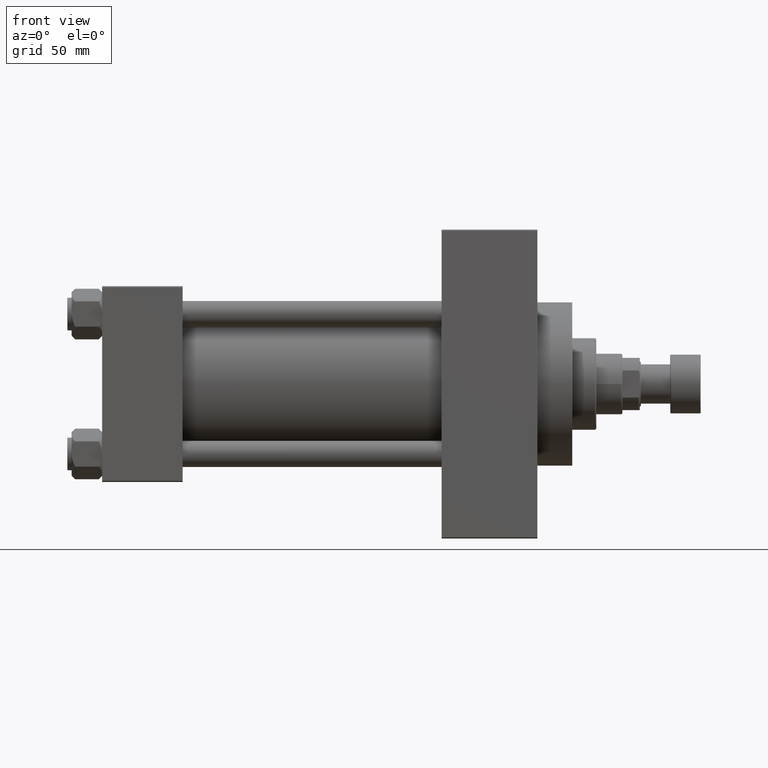
[diagram: clean part render]
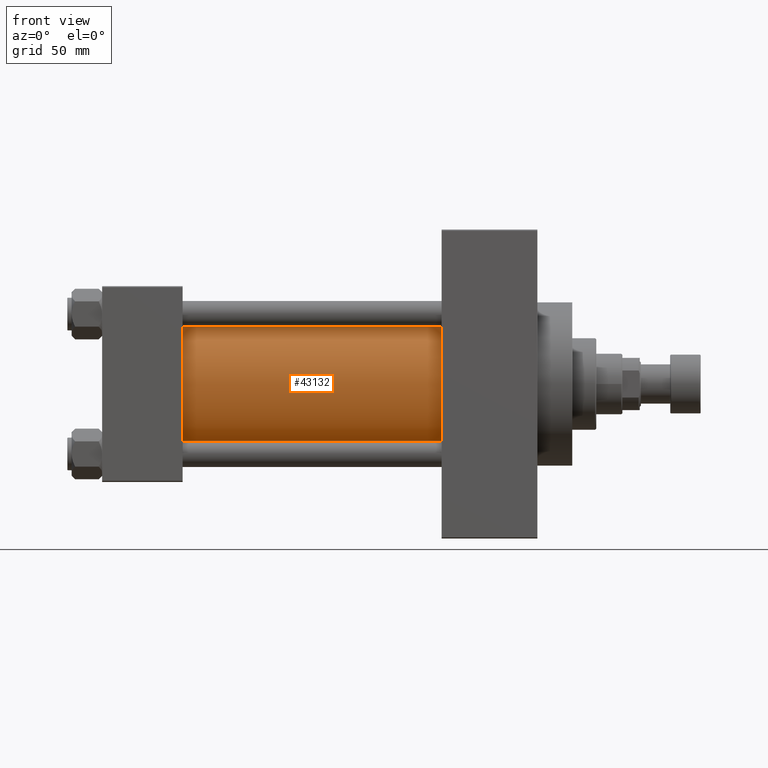
[diagram: same view with one face highlighted and labeled with its STEP entity id]
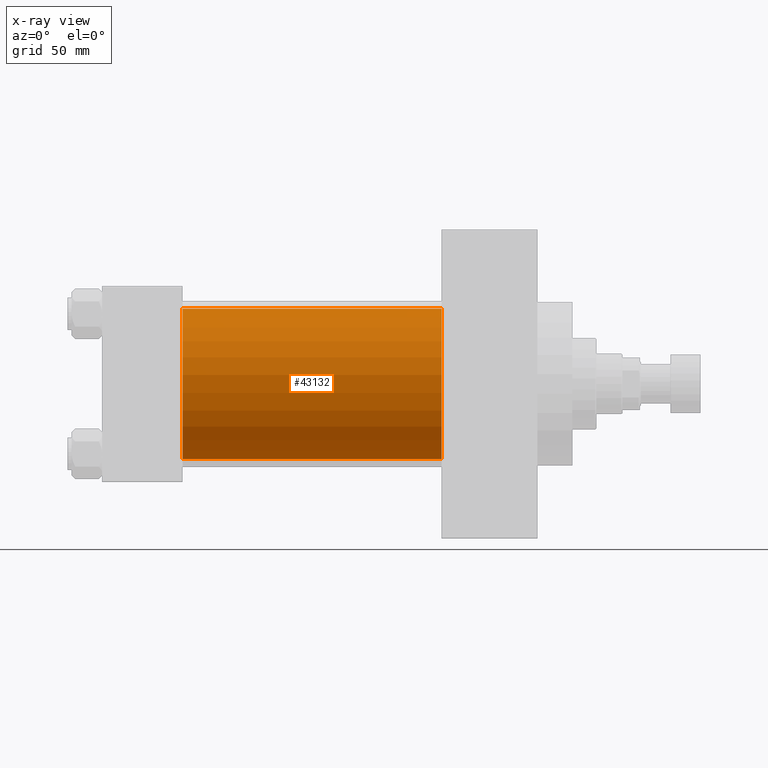
[diagram: x-ray of the same camera — body ghosted, the highlighted face saturated]
A machine part, front view. The second image highlights one B-rep face of the part: STEP entity #43132.
The next image is the same camera in x-ray: the body ghosted, the highlighted face saturated — about 1% of this face is hidden behind the body in this view.
In plain terms, the highlighted cylindrical surface (partial cylindrical patch) has radius 34.5 mm, axis along (-1, -0, -0).
Its self-contained STEP definition (entity closure, byte-faithful):
#1459 = DIRECTION ( 'NONE',  ( -1.000000000000000000, -0.000000000000000000, -0.000000000000000000 ) ) ;
#1900 = DIRECTION ( 'NONE',  ( 1.000000000000000000, -0.000000000000000000, 0.000000000000000000 ) ) ;
#3140 = EDGE_LOOP ( 'NONE', ( #34249, #21052, #8076, #26421 ) ) ;
#3490 = DIRECTION ( 'NONE',  ( -1.000000000000000000, -0.000000000000000000, -0.000000000000000000 ) ) ;
#3753 = CARTESIAN_POINT ( 'NONE',  ( 156.0000000000000000, -2.602085213965210642E-15, 0.000000000000000000 ) ) ;
#5546 = DIRECTION ( 'NONE',  ( 0.000000000000000000, 0.000000000000000000, 1.000000000000000000 ) ) ;
#8076 = ORIENTED_EDGE ( 'NONE', *, *, #27461, .T. ) ;
#9674 = AXIS2_PLACEMENT_3D ( 'NONE', #3753, #14819, #44242 ) ;
#12528 = CARTESIAN_POINT ( 'NONE',  ( 156.0000000000000000, -2.602085213965210642E-15, 0.000000000000000000 ) ) ;
#13248 = CARTESIAN_POINT ( 'NONE',  ( 37.00000000000000711, 1.622946243093158675E-15, -34.50000000000000000 ) ) ;
#14819 = DIRECTION ( 'NONE',  ( 1.000000000000000000, 0.000000000000000000, 0.000000000000000000 ) ) ;
#16377 = AXIS2_PLACEMENT_3D ( 'NONE', #12528, #1459, #5546 ) ;
#19967 = DIRECTION ( 'NONE',  ( 0.000000000000000000, 0.000000000000000000, 1.000000000000000000 ) ) ;
#20212 = EDGE_CURVE ( 'NONE', #42566, #30236, #30444, .T. ) ;
#21052 = ORIENTED_EDGE ( 'NONE', *, *, #20212, .F. ) ;
#21298 = VERTEX_POINT ( 'NONE', #21341 ) ;
#21331 = CARTESIAN_POINT ( 'NONE',  ( 156.0000000000000000, -2.602085213965210642E-15, 34.50000000000000000 ) ) ;
#21341 = CARTESIAN_POINT ( 'NONE',  ( 37.00000000000000711, -2.602085213965210642E-15, 34.50000000000000000 ) ) ;
#21798 = CARTESIAN_POINT ( 'NONE',  ( 156.0000000000000000, 1.622946243093158675E-15, -34.50000000000000000 ) ) ;
#22406 = DIRECTION ( 'NONE',  ( -1.000000000000000000, -0.000000000000000000, -0.000000000000000000 ) ) ;
#23427 = VECTOR ( 'NONE', #3490, 1000.000000000000000 ) ;
#23850 = FACE_OUTER_BOUND ( 'NONE', #3140, .T. ) ;
#24547 = CARTESIAN_POINT ( 'NONE',  ( 156.0000000000000000, 1.622946243093158675E-15, -34.50000000000000000 ) ) ;
#25560 = CARTESIAN_POINT ( 'NONE',  ( 156.0000000000000000, -2.602085213965210642E-15, 34.50000000000000000 ) ) ;
#26253 = LINE ( 'NONE', #25560, #29913 ) ;
#26421 = ORIENTED_EDGE ( 'NONE', *, *, #44842, .T. ) ;
#27461 = EDGE_CURVE ( 'NONE', #42566, #21298, #26253, .T. ) ;
#29913 = VECTOR ( 'NONE', #22406, 1000.000000000000000 ) ;
#30236 = VERTEX_POINT ( 'NONE', #24547 ) ;
#30444 = CIRCLE ( 'NONE', #9674, 34.50000000000000000 ) ;
#32587 = CIRCLE ( 'NONE', #44152, 34.50000000000000000 ) ;
#34249 = ORIENTED_EDGE ( 'NONE', *, *, #47217, .F. ) ;
#40126 = LINE ( 'NONE', #21798, #23427 ) ;
#41976 = VERTEX_POINT ( 'NONE', #13248 ) ;
#42566 = VERTEX_POINT ( 'NONE', #21331 ) ;
#43132 = ADVANCED_FACE ( 'NONE', ( #23850 ), #45095, .T. ) ;
#44152 = AXIS2_PLACEMENT_3D ( 'NONE', #46012, #1900, #19967 ) ;
#44242 = DIRECTION ( 'NONE',  ( 0.000000000000000000, 0.000000000000000000, -1.000000000000000000 ) ) ;
#44842 = EDGE_CURVE ( 'NONE', #21298, #41976, #32587, .T. ) ;
#45095 = CYLINDRICAL_SURFACE ( 'NONE', #16377, 34.50000000000000000 ) ;
#46012 = CARTESIAN_POINT ( 'NONE',  ( 37.00000000000000711, -2.602085213965210642E-15, 0.000000000000000000 ) ) ;
#47217 = EDGE_CURVE ( 'NONE', #30236, #41976, #40126, .T. ) ;